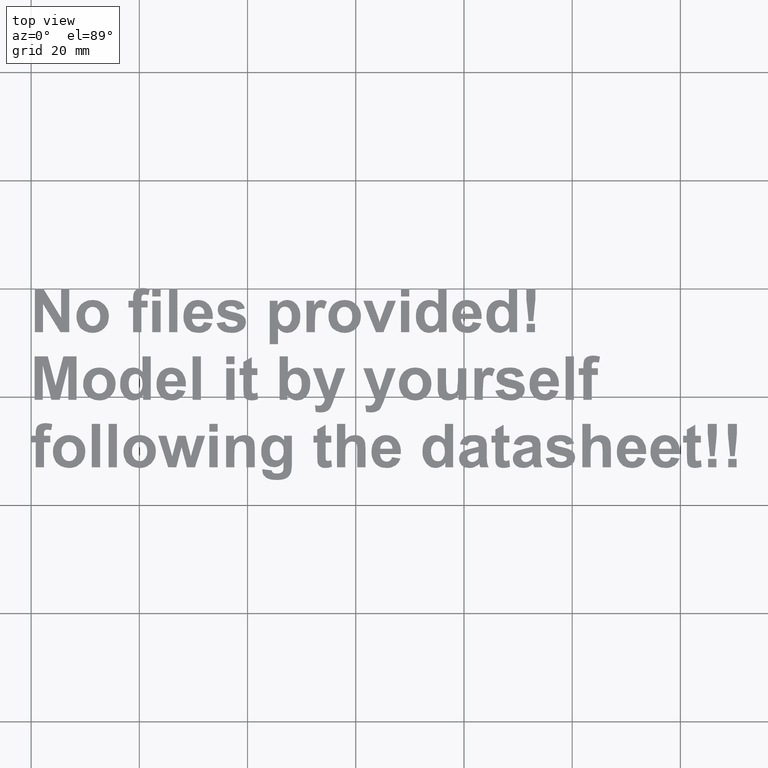
[diagram: clean part render]
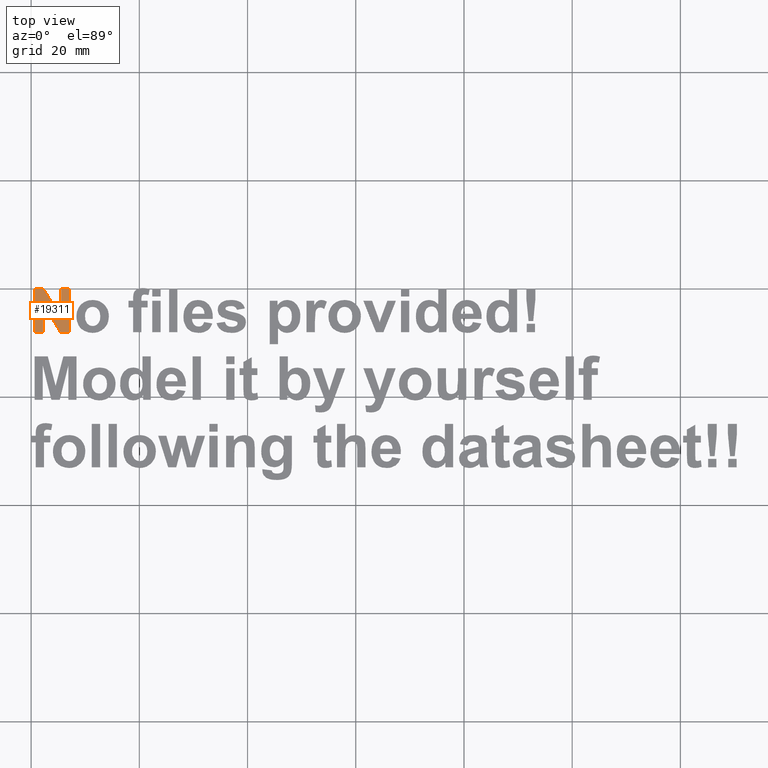
[diagram: same view with one face highlighted and labeled with its STEP entity id]
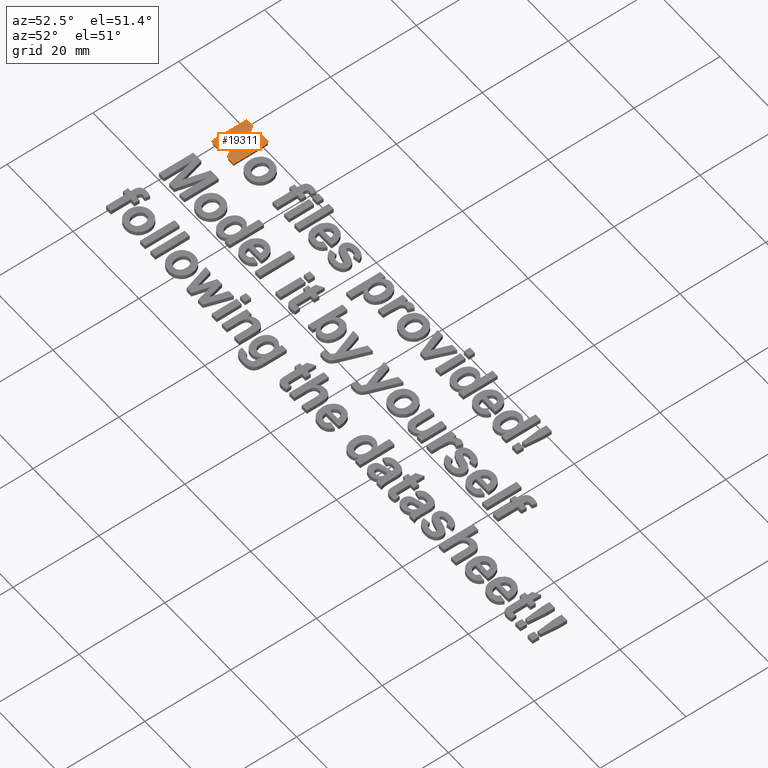
[diagram: same view with one face highlighted and labeled with its STEP entity id]
A machine part, top view. The second image highlights one B-rep face of the part: STEP entity #19311.
A second angle (auxiliary view) of the same face is appended — the face is thin or edge-on in the first view.
In plain terms, the highlighted planar face has unit normal (0, 0, 1).
Its self-contained STEP definition (entity closure, byte-faithful):
#649=PLANE('',#19855);
#1717=FACE_OUTER_BOUND('',#2829,.T.);
#2829=EDGE_LOOP('',(#17625,#17626,#17627,#17628,#17629,#17630,#17631,#17632,
#17633,#17634));
#4429=LINE('',#38345,#6055);
#4432=LINE('',#38351,#6058);
#4435=LINE('',#38357,#6061);
#4438=LINE('',#38363,#6064);
#4441=LINE('',#38369,#6067);
#4444=LINE('',#38375,#6070);
#4447=LINE('',#38381,#6073);
#4450=LINE('',#38387,#6076);
#4453=LINE('',#38393,#6079);
#4456=LINE('',#38397,#6082);
#6055=VECTOR('',#22371,10.);
#6058=VECTOR('',#22376,10.);
#6061=VECTOR('',#22381,10.);
#6064=VECTOR('',#22386,10.);
#6067=VECTOR('',#22391,10.);
#6070=VECTOR('',#22396,10.);
#6073=VECTOR('',#22401,10.);
#6076=VECTOR('',#22406,10.);
#6079=VECTOR('',#22411,10.);
#6082=VECTOR('',#22416,10.);
#9149=VERTEX_POINT('',#38342);
#9150=VERTEX_POINT('',#38344);
#9152=VERTEX_POINT('',#38350);
#9154=VERTEX_POINT('',#38356);
#9156=VERTEX_POINT('',#38362);
#9158=VERTEX_POINT('',#38368);
#9160=VERTEX_POINT('',#38374);
#9162=VERTEX_POINT('',#38380);
#9164=VERTEX_POINT('',#38386);
#9166=VERTEX_POINT('',#38392);
#11965=EDGE_CURVE('',#9150,#9149,#4429,.T.);
#11968=EDGE_CURVE('',#9152,#9150,#4432,.T.);
#11971=EDGE_CURVE('',#9154,#9152,#4435,.T.);
#11974=EDGE_CURVE('',#9156,#9154,#4438,.T.);
#11977=EDGE_CURVE('',#9158,#9156,#4441,.T.);
#11980=EDGE_CURVE('',#9160,#9158,#4444,.T.);
#11983=EDGE_CURVE('',#9162,#9160,#4447,.T.);
#11986=EDGE_CURVE('',#9164,#9162,#4450,.T.);
#11989=EDGE_CURVE('',#9166,#9164,#4453,.T.);
#11992=EDGE_CURVE('',#9149,#9166,#4456,.T.);
#17625=ORIENTED_EDGE('',*,*,#11992,.T.);
#17626=ORIENTED_EDGE('',*,*,#11989,.T.);
#17627=ORIENTED_EDGE('',*,*,#11986,.T.);
#17628=ORIENTED_EDGE('',*,*,#11983,.T.);
#17629=ORIENTED_EDGE('',*,*,#11980,.T.);
#17630=ORIENTED_EDGE('',*,*,#11977,.T.);
#17631=ORIENTED_EDGE('',*,*,#11974,.T.);
#17632=ORIENTED_EDGE('',*,*,#11971,.T.);
#17633=ORIENTED_EDGE('',*,*,#11968,.T.);
#17634=ORIENTED_EDGE('',*,*,#11965,.T.);
#19311=ADVANCED_FACE('',(#1717),#649,.T.);
#19855=AXIS2_PLACEMENT_3D('',#38398,#22417,#22418);
#22371=DIRECTION('',(0.,-1.,0.));
#22376=DIRECTION('',(-1.,0.,0.));
#22381=DIRECTION('',(-0.522541620358049,0.852613778327318,0.));
#22386=DIRECTION('',(0.,-1.,0.));
#22391=DIRECTION('',(-1.,0.,0.));
#22396=DIRECTION('',(0.,1.,0.));
#22401=DIRECTION('',(1.,0.,0.));
#22406=DIRECTION('',(0.525833812768515,-0.850587327291752,0.));
#22411=DIRECTION('',(0.,1.,0.));
#22416=DIRECTION('',(1.,0.,0.));
#22417=DIRECTION('center_axis',(0.,0.,1.));
#22418=DIRECTION('ref_axis',(1.,0.,0.));
#38342=CARTESIAN_POINT('',(0.6984993070364,-8.00000011920929,1.));
#38344=CARTESIAN_POINT('',(0.6984993070364,0.,1.));
#38345=CARTESIAN_POINT('',(0.6984993070364,-8.00000011920929,1.));
#38350=CARTESIAN_POINT('',(2.27012269198895,0.,1.));
#38351=CARTESIAN_POINT('',(0.6984993070364,0.,1.));
#38356=CARTESIAN_POINT('',(5.54433830082417,-5.34242868423462,1.));
#38357=CARTESIAN_POINT('',(2.27012269198895,0.,1.));
#38362=CARTESIAN_POINT('',(5.54433830082417,0.,1.));
#38363=CARTESIAN_POINT('',(5.54433830082417,-5.34242868423462,1.));
#38368=CARTESIAN_POINT('',(7.04501993954182,0.,1.));
#38369=CARTESIAN_POINT('',(5.54433830082417,0.,1.));
#38374=CARTESIAN_POINT('',(7.04501993954182,-8.00000011920929,1.));
#38375=CARTESIAN_POINT('',(7.04501993954182,0.,1.));
#38380=CARTESIAN_POINT('',(5.42428381741047,-8.00000011920929,1.));
#38381=CARTESIAN_POINT('',(7.04501993954182,-8.00000011920929,1.));
#38386=CARTESIAN_POINT('',(2.19918139278889,-2.783083319664,1.));
#38387=CARTESIAN_POINT('',(5.42428381741047,-8.00000011920929,1.));
#38392=CARTESIAN_POINT('',(2.19918139278889,-8.00000011920929,1.));
#38393=CARTESIAN_POINT('',(2.19918139278889,-2.783083319664,1.));
#38397=CARTESIAN_POINT('',(2.19918139278889,-8.00000011920929,1.));
#38398=CARTESIAN_POINT('Origin',(65.2196452394128,-17.5934508442879,1.));